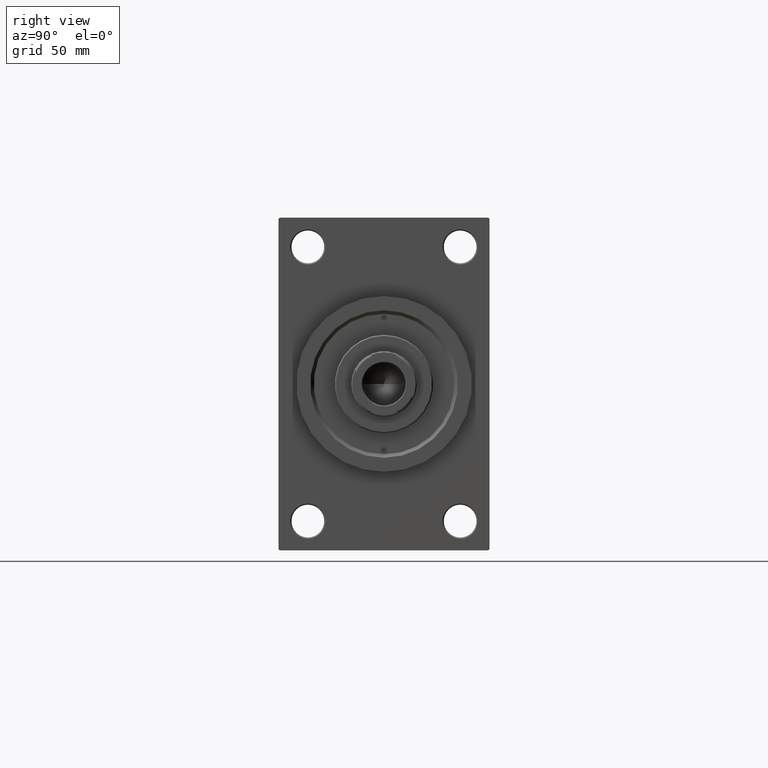
[diagram: clean part render]
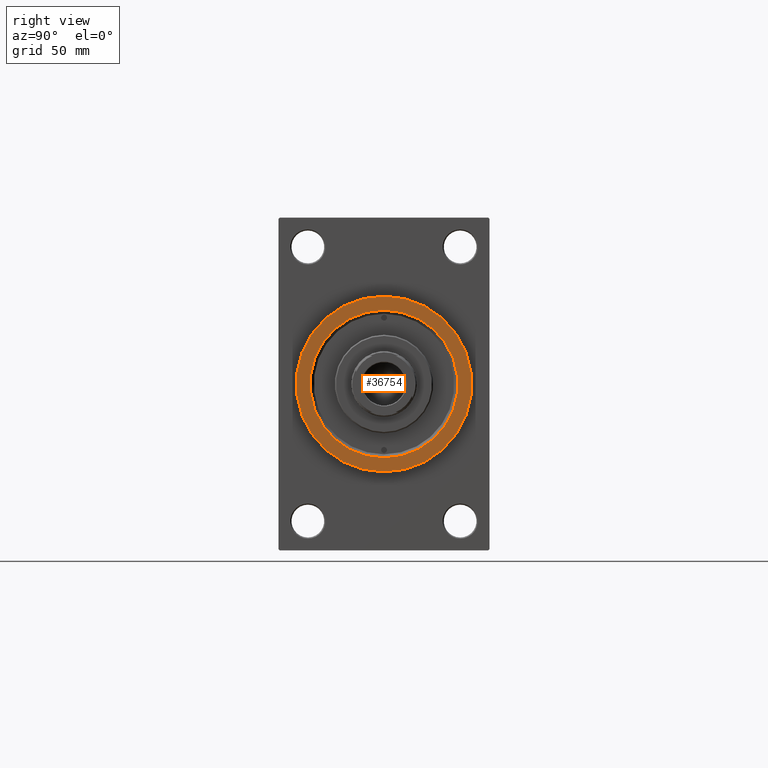
[diagram: same view with one face highlighted and labeled with its STEP entity id]
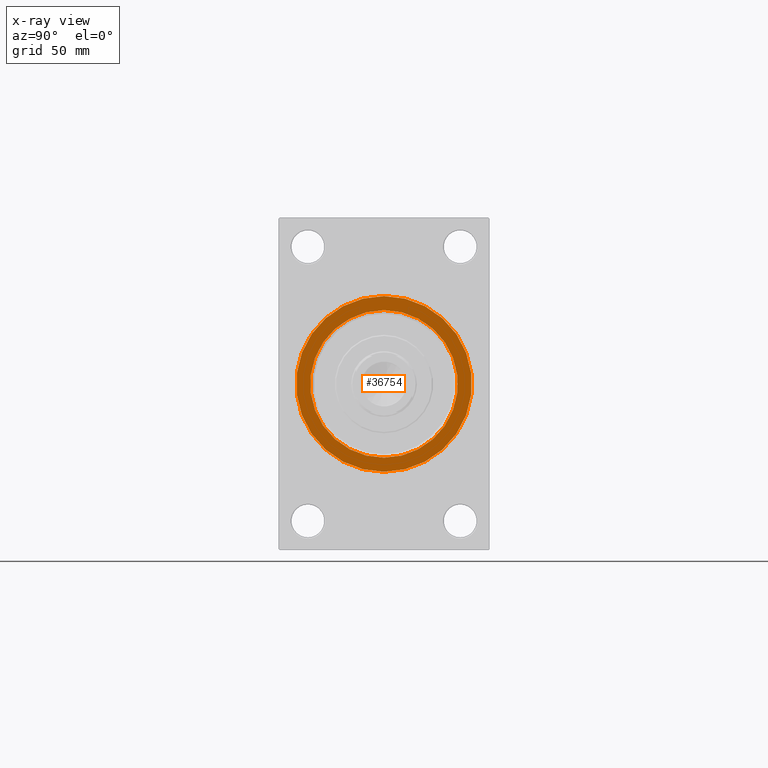
[diagram: x-ray of the same camera — body ghosted, the highlighted face saturated]
A machine part, right view. The second image highlights one B-rep face of the part: STEP entity #36754.
The next image is the same camera in x-ray: the body ghosted, the highlighted face saturated — about 0% of this face is hidden behind the body in this view.
In plain terms, the highlighted planar face has unit normal (1, 0, 0).
Its self-contained STEP definition (entity closure, byte-faithful):
#3445 = CARTESIAN_POINT ( 'NONE',  ( 216.0000000000000284, 0.000000000000000000, 0.000000000000000000 ) ) ;
#4252 = VERTEX_POINT ( 'NONE', #6098 ) ;
#6042 = CARTESIAN_POINT ( 'NONE',  ( 216.0000000000000284, 0.000000000000000000, 0.000000000000000000 ) ) ;
#6098 = CARTESIAN_POINT ( 'NONE',  ( 216.0000000000000284, 0.000000000000000000, 37.50000000000000711 ) ) ;
#6955 = ORIENTED_EDGE ( 'NONE', *, *, #23536, .T. ) ;
#7228 = CARTESIAN_POINT ( 'NONE',  ( 216.0000000000000284, 0.000000000000000000, -31.50000000000011013 ) ) ;
#9686 = DIRECTION ( 'NONE',  ( 1.000000000000000000, 0.000000000000000000, 0.000000000000000000 ) ) ;
#10720 = EDGE_LOOP ( 'NONE', ( #21479, #6955 ) ) ;
#11111 = DIRECTION ( 'NONE',  ( 0.000000000000000000, 0.000000000000000000, -1.000000000000000000 ) ) ;
#11169 = EDGE_CURVE ( 'NONE', #23923, #46115, #12520, .T. ) ;
#12520 = CIRCLE ( 'NONE', #44642, 31.50000000000011013 ) ;
#12593 = CARTESIAN_POINT ( 'NONE',  ( 216.0000000000000284, 3.857637417314175311E-15, 31.50000000000011013 ) ) ;
#13253 = FACE_BOUND ( 'NONE', #10720, .T. ) ;
#13534 = DIRECTION ( 'NONE',  ( -1.000000000000000000, -0.000000000000000000, -0.000000000000000000 ) ) ;
#14404 = ORIENTED_EDGE ( 'NONE', *, *, #27606, .T. ) ;
#15266 = CIRCLE ( 'NONE', #42042, 31.50000000000011013 ) ;
#15675 = CARTESIAN_POINT ( 'NONE',  ( 216.0000000000000284, 4.592425496802575156E-15, -37.50000000000000711 ) ) ;
#16631 = FACE_OUTER_BOUND ( 'NONE', #28444, .T. ) ;
#19631 = DIRECTION ( 'NONE',  ( 0.000000000000000000, 0.000000000000000000, -1.000000000000000000 ) ) ;
#20485 = DIRECTION ( 'NONE',  ( 0.000000000000000000, 0.000000000000000000, -1.000000000000000000 ) ) ;
#21479 = ORIENTED_EDGE ( 'NONE', *, *, #11169, .T. ) ;
#21545 = AXIS2_PLACEMENT_3D ( 'NONE', #43944, #47065, #11111 ) ;
#22440 = EDGE_CURVE ( 'NONE', #4252, #38027, #45949, .T. ) ;
#23355 = DIRECTION ( 'NONE',  ( 1.000000000000000000, 0.000000000000000000, 0.000000000000000000 ) ) ;
#23536 = EDGE_CURVE ( 'NONE', #46115, #23923, #15266, .T. ) ;
#23923 = VERTEX_POINT ( 'NONE', #7228 ) ;
#27606 = EDGE_CURVE ( 'NONE', #38027, #4252, #42184, .T. ) ;
#27640 = PLANE ( 'NONE',  #41704 ) ;
#28333 = AXIS2_PLACEMENT_3D ( 'NONE', #39862, #9686, #20485 ) ;
#28444 = EDGE_LOOP ( 'NONE', ( #29914, #14404 ) ) ;
#29914 = ORIENTED_EDGE ( 'NONE', *, *, #22440, .T. ) ;
#36754 = ADVANCED_FACE ( 'NONE', ( #13253, #16631 ), #27640, .T. ) ;
#37825 = DIRECTION ( 'NONE',  ( -1.000000000000000000, -0.000000000000000000, -0.000000000000000000 ) ) ;
#38027 = VERTEX_POINT ( 'NONE', #15675 ) ;
#39862 = CARTESIAN_POINT ( 'NONE',  ( 216.0000000000000284, 0.000000000000000000, 0.000000000000000000 ) ) ;
#41704 = AXIS2_PLACEMENT_3D ( 'NONE', #6042, #23355, #45622 ) ;
#42042 = AXIS2_PLACEMENT_3D ( 'NONE', #42123, #37825, #19631 ) ;
#42123 = CARTESIAN_POINT ( 'NONE',  ( 216.0000000000000284, 0.000000000000000000, 0.000000000000000000 ) ) ;
#42184 = CIRCLE ( 'NONE', #21545, 37.50000000000000711 ) ;
#43944 = CARTESIAN_POINT ( 'NONE',  ( 216.0000000000000284, 0.000000000000000000, 0.000000000000000000 ) ) ;
#44642 = AXIS2_PLACEMENT_3D ( 'NONE', #3445, #13534, #46590 ) ;
#45622 = DIRECTION ( 'NONE',  ( 0.000000000000000000, 0.000000000000000000, -1.000000000000000000 ) ) ;
#45949 = CIRCLE ( 'NONE', #28333, 37.50000000000000711 ) ;
#46115 = VERTEX_POINT ( 'NONE', #12593 ) ;
#46590 = DIRECTION ( 'NONE',  ( 0.000000000000000000, 0.000000000000000000, -1.000000000000000000 ) ) ;
#47065 = DIRECTION ( 'NONE',  ( 1.000000000000000000, 0.000000000000000000, 0.000000000000000000 ) ) ;